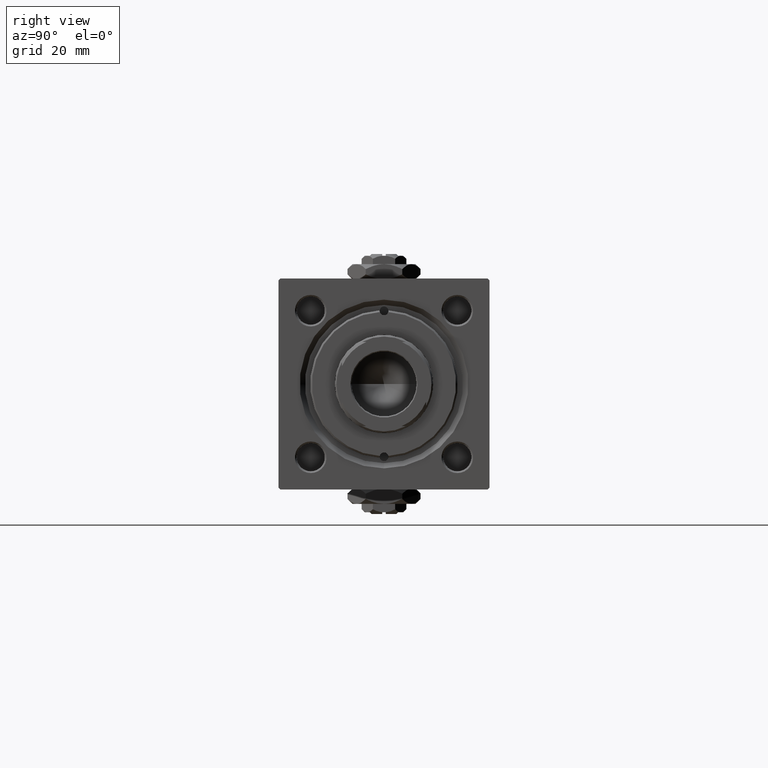
[diagram: clean part render]
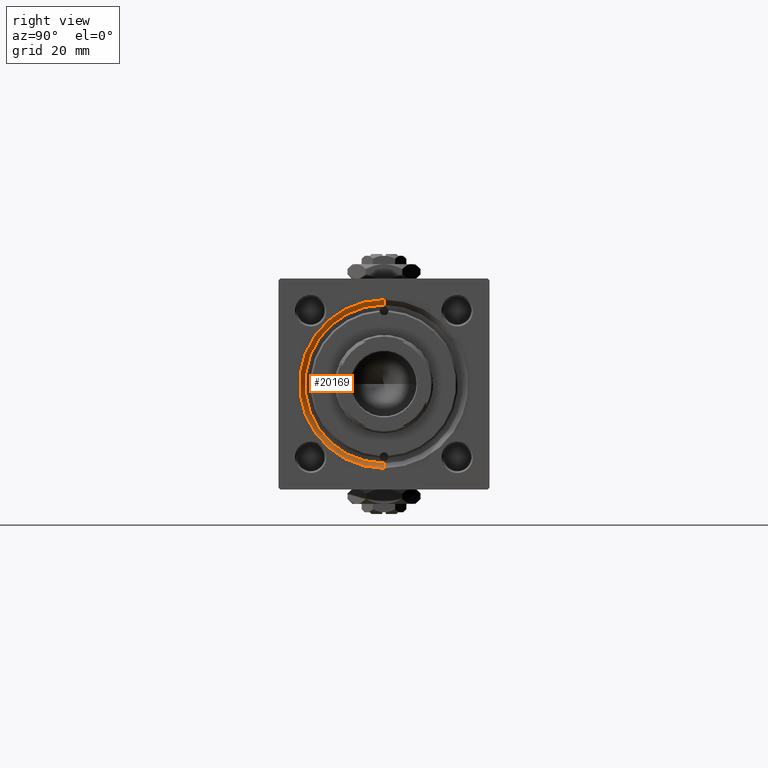
[diagram: same view with one face highlighted and labeled with its STEP entity id]
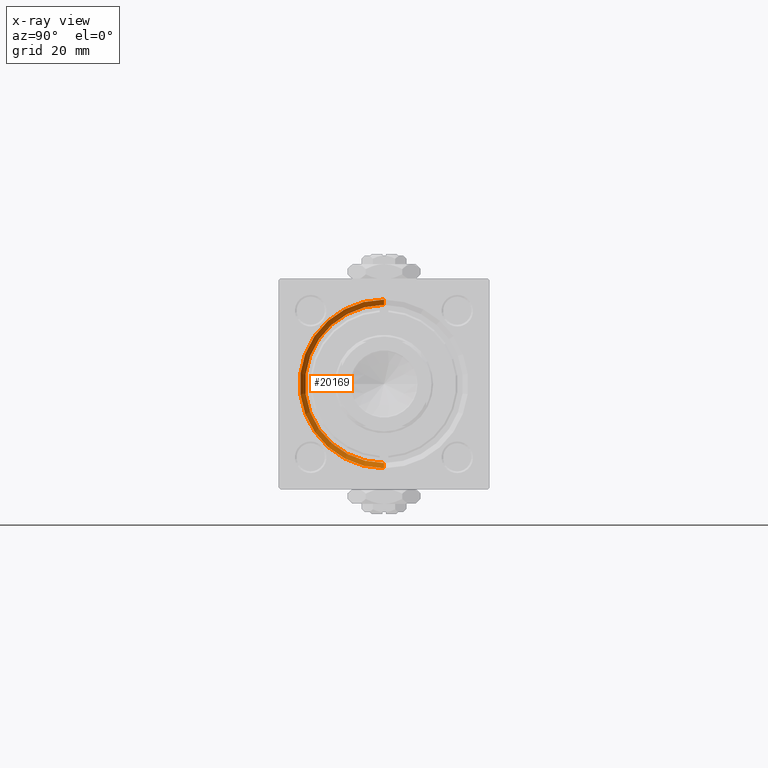
[diagram: x-ray of the same camera — body ghosted, the highlighted face saturated]
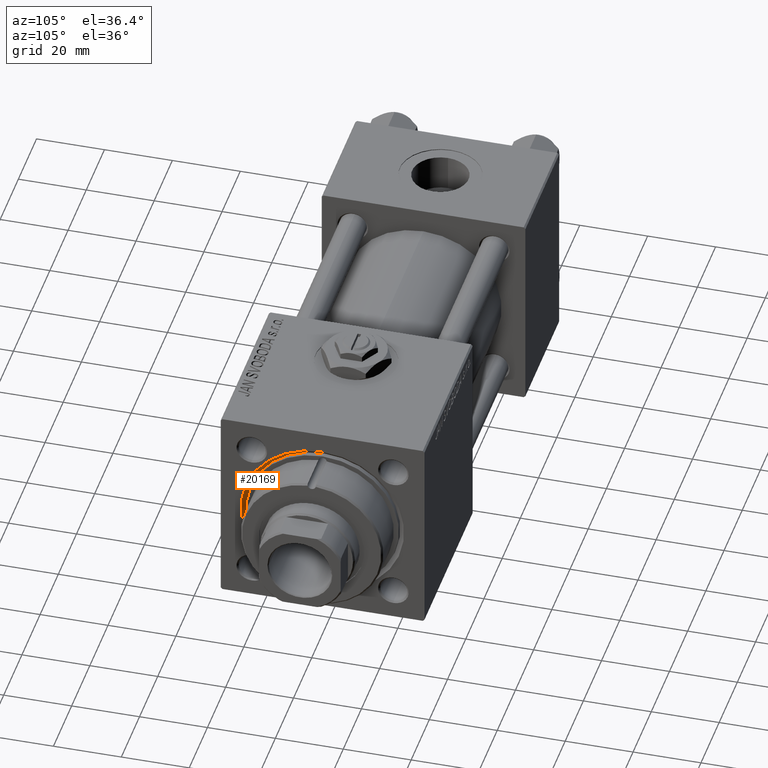
[diagram: same view with one face highlighted and labeled with its STEP entity id]
A machine part, right view. The second image highlights one B-rep face of the part: STEP entity #20169.
The next image is the same camera in x-ray: the body ghosted, the highlighted face saturated — about 0% of this face is hidden behind the body in this view.
A second angle (auxiliary view) of the same face is appended — the face is thin or edge-on in the first view.
In plain terms, the highlighted conical surface has half-angle 45 deg.
Its self-contained STEP definition (entity closure, byte-faithful):
#268 = DIRECTION ( 'NONE',  ( 0.000000000000000000, 0.000000000000000000, 1.000000000000000000 ) ) ;
#371 = CARTESIAN_POINT ( 'NONE',  ( 146.4999999999999432, 2.755455298081545172E-15, 22.50000000000000355 ) ) ;
#1185 = ORIENTED_EDGE ( 'NONE', *, *, #49381, .F. ) ;
#1731 = DIRECTION ( 'NONE',  ( 0.7071067811865524577, 0.000000000000000000, -0.7071067811865426878 ) ) ;
#4204 = DIRECTION ( 'NONE',  ( 1.000000000000000000, 0.000000000000000000, 0.000000000000000000 ) ) ;
#4311 = LINE ( 'NONE', #36957, #22635 ) ;
#4406 = LINE ( 'NONE', #49282, #24968 ) ;
#5391 = EDGE_CURVE ( 'NONE', #30868, #28001, #24419, .T. ) ;
#5515 = EDGE_CURVE ( 'NONE', #18271, #24658, #39690, .T. ) ;
#6693 = CARTESIAN_POINT ( 'NONE',  ( 146.4999999999999432, 0.000000000000000000, -22.50000000000000355 ) ) ;
#11678 = DIRECTION ( 'NONE',  ( -1.000000000000000000, 0.000000000000000000, -0.000000000000000000 ) ) ;
#12549 = AXIS2_PLACEMENT_3D ( 'NONE', #36114, #11678, #268 ) ;
#16802 = AXIS2_PLACEMENT_3D ( 'NONE', #35851, #52051, #27366 ) ;
#18204 = ORIENTED_EDGE ( 'NONE', *, *, #5515, .F. ) ;
#18271 = VERTEX_POINT ( 'NONE', #371 ) ;
#19785 = CONICAL_SURFACE ( 'NONE', #47794, 22.50000000000000355, 0.7853981633974415066 ) ;
#20169 = ADVANCED_FACE ( 'NONE', ( #24649 ), #19785, .F. ) ;
#22635 = VECTOR ( 'NONE', #29251, 1000.000000000000000 ) ;
#23192 = EDGE_LOOP ( 'NONE', ( #18204, #32303, #44596, #1185 ) ) ;
#24419 = CIRCLE ( 'NONE', #12549, 24.00000000000003908 ) ;
#24649 = FACE_OUTER_BOUND ( 'NONE', #23192, .T. ) ;
#24655 = CARTESIAN_POINT ( 'NONE',  ( 148.0000000000000000, 2.939152317953652628E-15, 24.00000000000003908 ) ) ;
#24658 = VERTEX_POINT ( 'NONE', #6693 ) ;
#24968 = VECTOR ( 'NONE', #1731, 1000.000000000000000 ) ;
#27366 = DIRECTION ( 'NONE',  ( 0.000000000000000000, 0.000000000000000000, 1.000000000000000000 ) ) ;
#28001 = VERTEX_POINT ( 'NONE', #24655 ) ;
#28381 = CARTESIAN_POINT ( 'NONE',  ( 146.4999999999999432, 0.000000000000000000, 0.000000000000000000 ) ) ;
#28745 = CARTESIAN_POINT ( 'NONE',  ( 148.0000000000000000, 0.000000000000000000, -24.00000000000003908 ) ) ;
#29251 = DIRECTION ( 'NONE',  ( 0.7071067811865524577, 8.659560562354874926E-17, 0.7071067811865426878 ) ) ;
#30095 = EDGE_CURVE ( 'NONE', #18271, #28001, #4311, .T. ) ;
#30868 = VERTEX_POINT ( 'NONE', #28745 ) ;
#32303 = ORIENTED_EDGE ( 'NONE', *, *, #30095, .T. ) ;
#35851 = CARTESIAN_POINT ( 'NONE',  ( 146.4999999999999432, 0.000000000000000000, 0.000000000000000000 ) ) ;
#36114 = CARTESIAN_POINT ( 'NONE',  ( 148.0000000000000000, 0.000000000000000000, 0.000000000000000000 ) ) ;
#36594 = DIRECTION ( 'NONE',  ( 0.000000000000000000, 0.000000000000000000, -1.000000000000000000 ) ) ;
#36957 = CARTESIAN_POINT ( 'NONE',  ( 146.4999999999999432, 2.755455298081545172E-15, 22.50000000000000355 ) ) ;
#39690 = CIRCLE ( 'NONE', #16802, 22.50000000000000355 ) ;
#44596 = ORIENTED_EDGE ( 'NONE', *, *, #5391, .F. ) ;
#47794 = AXIS2_PLACEMENT_3D ( 'NONE', #28381, #4204, #36594 ) ;
#49282 = CARTESIAN_POINT ( 'NONE',  ( 146.4999999999999432, 0.000000000000000000, -22.50000000000000355 ) ) ;
#49381 = EDGE_CURVE ( 'NONE', #24658, #30868, #4406, .T. ) ;
#52051 = DIRECTION ( 'NONE',  ( 1.000000000000000000, 0.000000000000000000, 0.000000000000000000 ) ) ;